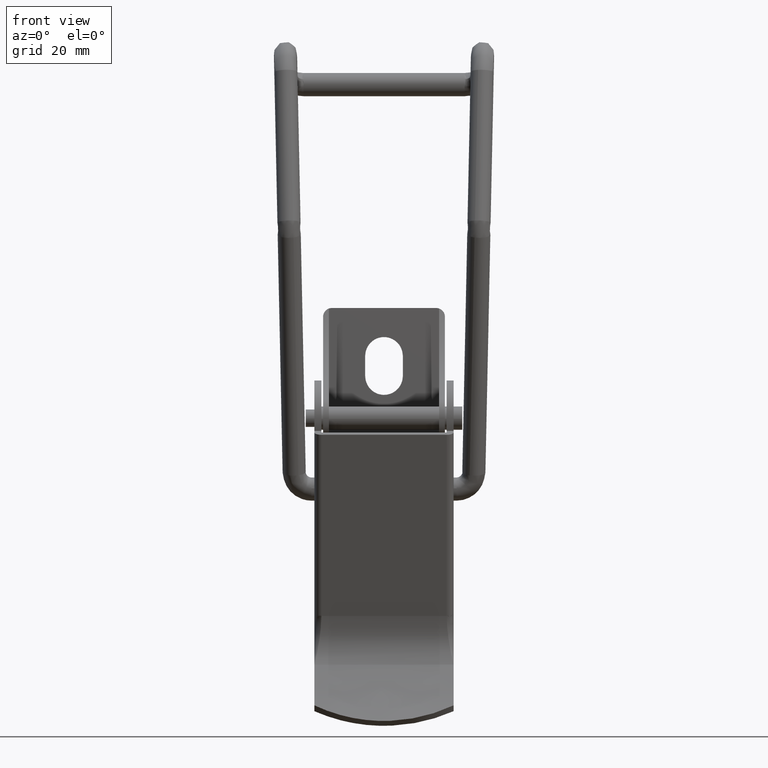
[diagram: clean part render]
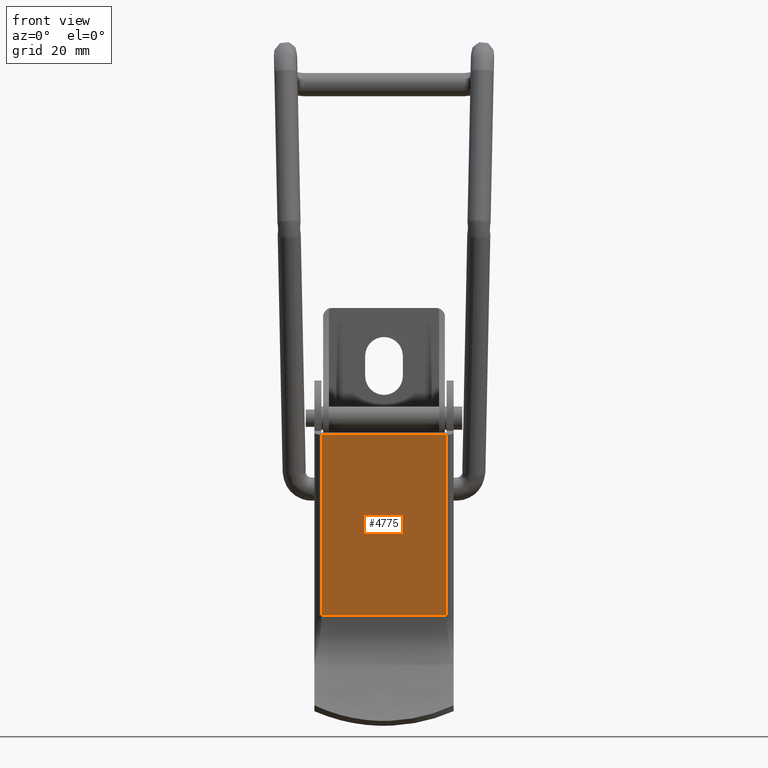
[diagram: same view with one face highlighted and labeled with its STEP entity id]
A machine part, front view. The second image highlights one B-rep face of the part: STEP entity #4775.
In plain terms, the highlighted face is a freeform B-spline surface patch.
Its self-contained STEP definition (entity closure, byte-faithful):
#4103=CARTESIAN_POINT('',(-10.800000000000001,3.218098168344060,-34.098924715329353));
#4104=VERTEX_POINT('',#4103);
#4154=CARTESIAN_POINT('',(-10.800000000000001,-7.999382729388739,-2.874000000000000));
#4155=VERTEX_POINT('',#4154);
#4173=CARTESIAN_POINT('',(-10.800000000000001,-7.999382729388739,-2.874000000000000));
#4174=CARTESIAN_POINT('',(-10.800000000000001,3.218098168344060,-34.098924715329353));
#4175=QUASI_UNIFORM_CURVE('',1,(#4173,#4174),.UNSPECIFIED.,.F.,.U.);
#4176=EDGE_CURVE('',#4155,#4104,#4175,.T.);
#4209=CARTESIAN_POINT('',(10.799700000000000,3.218098168344060,-34.098924715329353));
#4210=VERTEX_POINT('',#4209);
#4274=CARTESIAN_POINT('',(10.799700000000000,-7.999382729388739,-2.874000000000000));
#4275=VERTEX_POINT('',#4274);
#4291=CARTESIAN_POINT('',(10.799700000000000,3.218098168344060,-34.098924715329353));
#4292=CARTESIAN_POINT('',(10.799700000000000,-7.999382729388739,-2.874000000000000));
#4293=QUASI_UNIFORM_CURVE('',1,(#4291,#4292),.UNSPECIFIED.,.F.,.U.);
#4294=EDGE_CURVE('',#4210,#4275,#4293,.T.);
#4756=CARTESIAN_POINT('',(-11.878904973135590,3.778411317444159,-35.658609644340089));
#4757=CARTESIAN_POINT('',(-11.878904973135590,-8.559696179365139,-1.314314233471521));
#4758=CARTESIAN_POINT('',(11.878605552484689,3.778411317444159,-35.658609644340089));
#4759=CARTESIAN_POINT('',(11.878605552484689,-8.559696179365139,-1.314314233471521));
#4760=B_SPLINE_SURFACE_WITH_KNOTS('',1,1,((#4756,#4758),(#4757,#4759)),.UNSPECIFIED.,.F.,.F.,.U.,(2,2),(2,2),(0.0,36.493280530418602),(0.0,23.757510525620280),.UNSPECIFIED.);
#4761=CARTESIAN_POINT('',(-10.800000000000001,3.218098168344060,-34.098924715329353));
#4762=CARTESIAN_POINT('',(10.799700000000000,3.218098168344060,-34.098924715329353));
#4763=QUASI_UNIFORM_CURVE('',1,(#4761,#4762),.UNSPECIFIED.,.F.,.U.);
#4764=EDGE_CURVE('',#4104,#4210,#4763,.T.);
#4765=ORIENTED_EDGE('',*,*,#4764,.T.);
#4766=ORIENTED_EDGE('',*,*,#4294,.T.);
#4767=CARTESIAN_POINT('',(-10.800000000000001,-7.999382729388739,-2.874000000000000));
#4768=CARTESIAN_POINT('',(10.799700000000000,-7.999382729388739,-2.874000000000000));
#4769=QUASI_UNIFORM_CURVE('',1,(#4767,#4768),.UNSPECIFIED.,.F.,.U.);
#4770=EDGE_CURVE('',#4155,#4275,#4769,.T.);
#4771=ORIENTED_EDGE('',*,*,#4770,.F.);
#4772=ORIENTED_EDGE('',*,*,#4176,.T.);
#4773=EDGE_LOOP('',(#4765,#4766,#4771,#4772));
#4774=FACE_OUTER_BOUND('',#4773,.T.);
#4775=ADVANCED_FACE('',(#4774),#4760,.F.);